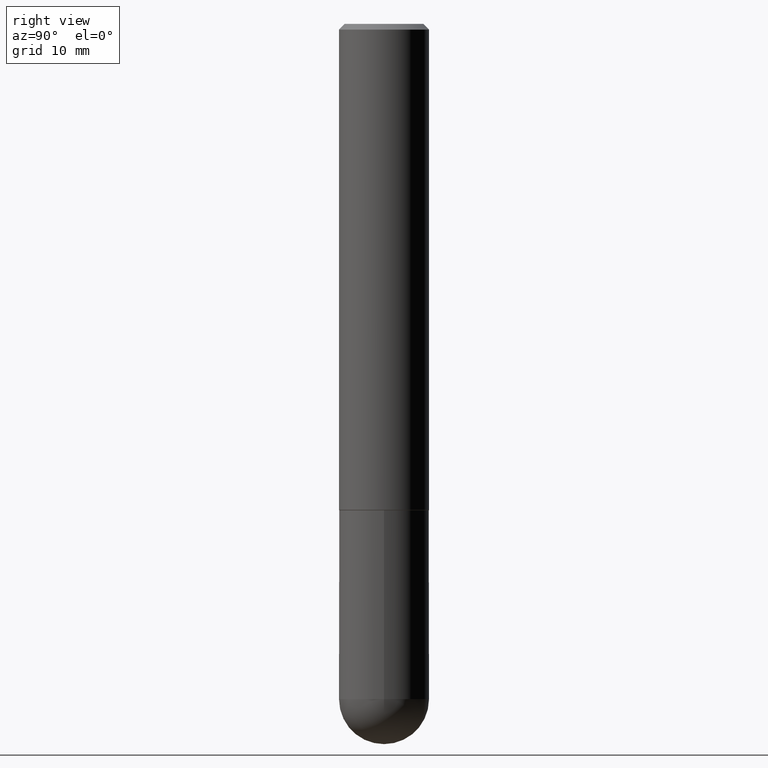
[diagram: clean part render]
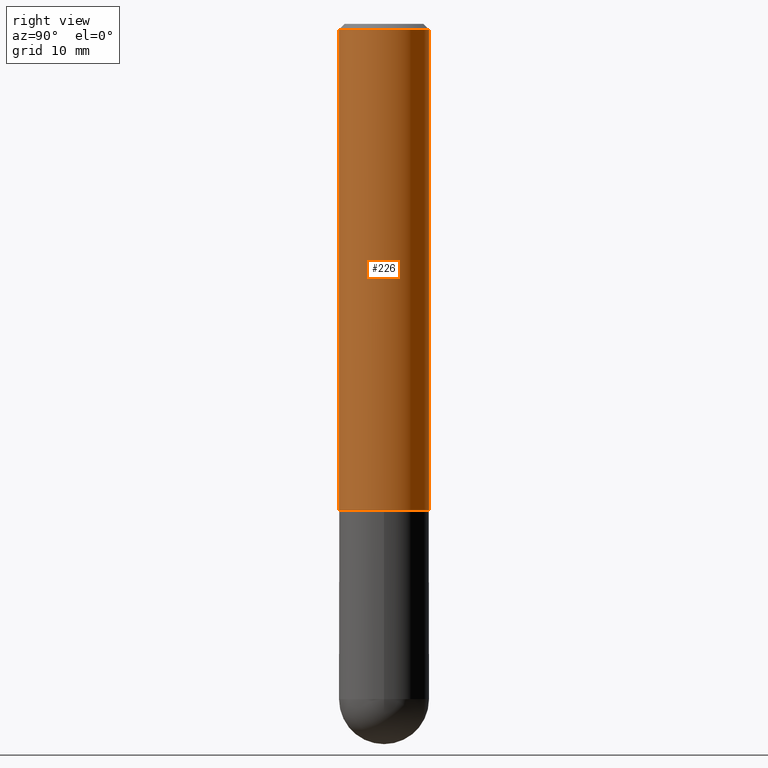
[diagram: same view with one face highlighted and labeled with its STEP entity id]
A machine part, right view. The second image highlights one B-rep face of the part: STEP entity #226.
In plain terms, the highlighted cylindrical surface (partial cylindrical patch) has radius 3.9688 mm, axis along (-0, 0, 1).
Its self-contained STEP definition (entity closure, byte-faithful):
#6 = EDGE_CURVE ( 'NONE', #196, #306, #71, .T. ) ;
#17 = CARTESIAN_POINT ( 'NONE',  ( 1.110223024625157329E-15, 0.1562500000000001388, -5.455654654980758660E-16 ) ) ;
#33 = VECTOR ( 'NONE', #265, 39.37007874015748143 ) ;
#34 = CARTESIAN_POINT ( 'NONE',  ( -1.091087918388439336E-15, -0.1562500000000060785, -1.686999999999999611 ) ) ;
#48 = VERTEX_POINT ( 'NONE', #121 ) ;
#53 = DIRECTION ( 'NONE',  ( -2.445372692446252269E-29, 3.491618979187682229E-15, 1.000000000000000000 ) ) ;
#67 = CARTESIAN_POINT ( 'NONE',  ( 4.125343732156827639E-29, -5.890361217889620677E-15, -1.687000000000000055 ) ) ;
#71 = CIRCLE ( 'NONE', #389, 0.1562500000000002220 ) ;
#78 = DIRECTION ( 'NONE',  ( -2.445372692446252549E-29, 3.491618979187682229E-15, 1.000000000000000000 ) ) ;
#92 = EDGE_LOOP ( 'NONE', ( #116, #183, #201, #352 ) ) ;
#99 = DIRECTION ( 'NONE',  ( -2.445372692446252269E-29, 3.491618979187682229E-15, 1.000000000000000000 ) ) ;
#102 = DIRECTION ( 'NONE',  ( -6.982962677686265922E-15, -1.000000000000000000, 3.491618979187682623E-15 ) ) ;
#108 = CARTESIAN_POINT ( 'NONE',  ( 1.110223024625178431E-15, 0.1562499999999943379, -1.687000000000000499 ) ) ;
#116 = ORIENTED_EDGE ( 'NONE', *, *, #6, .T. ) ;
#121 = CARTESIAN_POINT ( 'NONE',  ( 1.091087918388479765E-15, 0.1562499999999999722, -0.02000000000000057981 ) ) ;
#150 = EDGE_CURVE ( 'NONE', #196, #285, #387, .T. ) ;
#178 = DIRECTION ( 'NONE',  ( -6.982962677686266711E-15, -1.000000000000000000, 3.496765431890256131E-15 ) ) ;
#179 = CIRCLE ( 'NONE', #406, 0.1562500000000000278 ) ;
#183 = ORIENTED_EDGE ( 'NONE', *, *, #302, .T. ) ;
#184 = CARTESIAN_POINT ( 'NONE',  ( -1.091087918388479962E-15, -0.1562500000000001388, 5.455654654980758660E-16 ) ) ;
#195 = CARTESIAN_POINT ( 'NONE',  ( -1.071952812151801412E-15, -0.1562500000000001110, -0.01999999999999948694 ) ) ;
#196 = VERTEX_POINT ( 'NONE', #34 ) ;
#201 = ORIENTED_EDGE ( 'NONE', *, *, #261, .F. ) ;
#226 = ADVANCED_FACE ( 'NONE', ( #327 ), #381, .T. ) ;
#230 = DIRECTION ( 'NONE',  ( -2.445372692446252269E-29, 3.491618979187682229E-15, 1.000000000000000000 ) ) ;
#261 = EDGE_CURVE ( 'NONE', #285, #48, #179, .T. ) ;
#265 = DIRECTION ( 'NONE',  ( -2.445372692446252549E-29, 3.491618979187682229E-15, 1.000000000000000000 ) ) ;
#285 = VERTEX_POINT ( 'NONE', #195 ) ;
#297 = CARTESIAN_POINT ( 'NONE',  ( 0.000000000000000000, 0.000000000000000000, 0.000000000000000000 ) ) ;
#302 = EDGE_CURVE ( 'NONE', #306, #48, #396, .T. ) ;
#306 = VERTEX_POINT ( 'NONE', #108 ) ;
#327 = FACE_OUTER_BOUND ( 'NONE', #92, .T. ) ;
#352 = ORIENTED_EDGE ( 'NONE', *, *, #150, .F. ) ;
#364 = DIRECTION ( 'NONE',  ( -6.982962677686265922E-15, -1.000000000000000000, 3.496765431890251792E-15 ) ) ;
#381 = CYLINDRICAL_SURFACE ( 'NONE', #385, 0.1562500000000001388 ) ;
#385 = AXIS2_PLACEMENT_3D ( 'NONE', #297, #99, #102 ) ;
#387 = LINE ( 'NONE', #184, #33 ) ;
#389 = AXIS2_PLACEMENT_3D ( 'NONE', #67, #230, #364 ) ;
#394 = CARTESIAN_POINT ( 'NONE',  ( 4.890745384892512385E-31, -6.983237958375376735E-17, -0.02000000000000003511 ) ) ;
#395 = VECTOR ( 'NONE', #78, 39.37007874015748143 ) ;
#396 = LINE ( 'NONE', #17, #395 ) ;
#406 = AXIS2_PLACEMENT_3D ( 'NONE', #394, #53, #178 ) ;